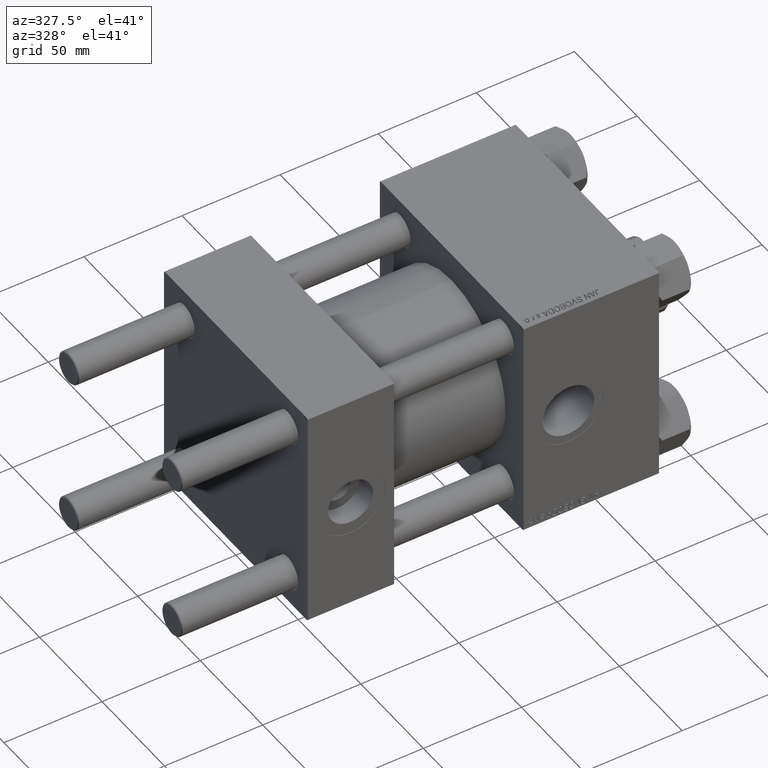
[diagram: clean part render]
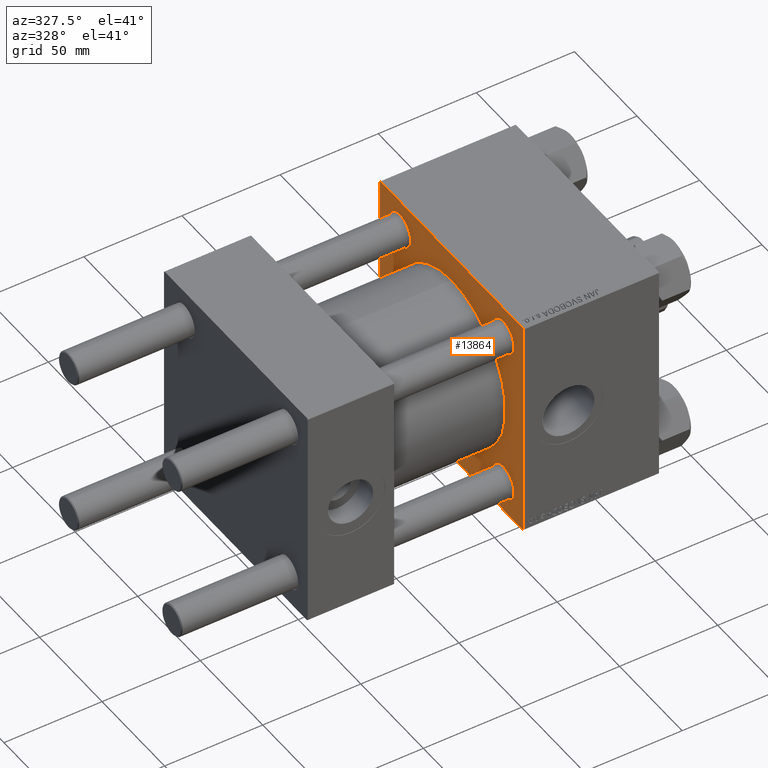
[diagram: same view with one face highlighted and labeled with its STEP entity id]
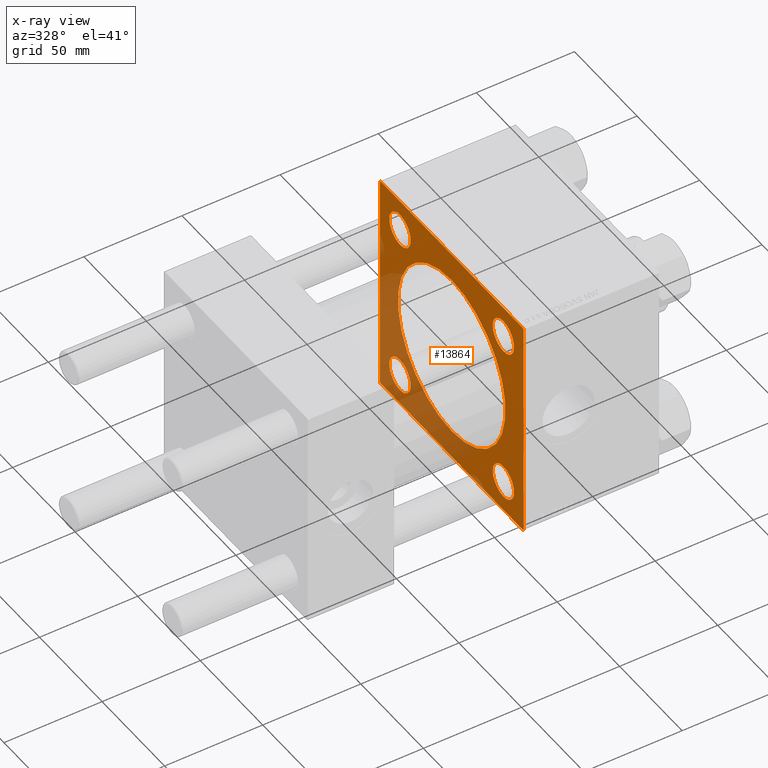
[diagram: x-ray of the same camera — body ghosted, the highlighted face saturated]
A machine part, auxiliary view. The second image highlights one B-rep face of the part: STEP entity #13864.
The next image is the same camera in x-ray: the body ghosted, the highlighted face saturated — about 31% of this face is hidden behind the body in this view.
In plain terms, the highlighted planar face has unit normal (-1, 0, 0).
Its self-contained STEP definition (entity closure, byte-faithful):
#338 = CARTESIAN_POINT ( 'NONE',  ( 110.0000000000000000, -41.34999999999998721, 49.85000000000002274 ) ) ;
#449 = CARTESIAN_POINT ( 'NONE',  ( 110.0000000000000000, 41.34999999999999432, 41.35000000000000142 ) ) ;
#676 = VERTEX_POINT ( 'NONE', #43783 ) ;
#844 = VERTEX_POINT ( 'NONE', #6535 ) ;
#869 = DIRECTION ( 'NONE',  ( 0.000000000000000000, 0.000000000000000000, -1.000000000000000000 ) ) ;
#1307 = ORIENTED_EDGE ( 'NONE', *, *, #30602, .T. ) ;
#1419 = VERTEX_POINT ( 'NONE', #44316 ) ;
#1496 = DIRECTION ( 'NONE',  ( 0.000000000000000000, 0.000000000000000000, 1.000000000000000000 ) ) ;
#1780 = CARTESIAN_POINT ( 'NONE',  ( 110.0000000000000000, 0.000000000000000000, 43.00000000000000000 ) ) ;
#1874 = VERTEX_POINT ( 'NONE', #35026 ) ;
#1920 = FACE_BOUND ( 'NONE', #12750, .T. ) ;
#2845 = LINE ( 'NONE', #33964, #40947 ) ;
#2906 = CARTESIAN_POINT ( 'NONE',  ( 110.0000000000000000, -57.49999999999999289, 56.99999999999996447 ) ) ;
#2942 = DIRECTION ( 'NONE',  ( 0.000000000000000000, 0.7071067811865672237, -0.7071067811865279218 ) ) ;
#3134 = VERTEX_POINT ( 'NONE', #36094 ) ;
#3811 = EDGE_CURVE ( 'NONE', #21902, #45372, #22940, .T. ) ;
#4297 = CARTESIAN_POINT ( 'NONE',  ( 110.0000000000000000, -41.34999999999998721, -32.85000000000000142 ) ) ;
#4731 = FACE_BOUND ( 'NONE', #47167, .T. ) ;
#5009 = VECTOR ( 'NONE', #17427, 1000.000000000000000 ) ;
#5416 = AXIS2_PLACEMENT_3D ( 'NONE', #41742, #22365, #37385 ) ;
#5457 = ORIENTED_EDGE ( 'NONE', *, *, #27644, .T. ) ;
#5629 = ORIENTED_EDGE ( 'NONE', *, *, #48922, .T. ) ;
#5926 = DIRECTION ( 'NONE',  ( 0.000000000000000000, 0.000000000000000000, -1.000000000000000000 ) ) ;
#6145 = CARTESIAN_POINT ( 'NONE',  ( 110.0000000000000000, 41.34999999999999432, -41.35000000000000142 ) ) ;
#6227 = CIRCLE ( 'NONE', #27389, 8.500000000000007105 ) ;
#6458 = VECTOR ( 'NONE', #10352, 1000.000000000000000 ) ;
#6535 = CARTESIAN_POINT ( 'NONE',  ( 110.0000000000000000, -57.49999999999999289, -56.99999999999997868 ) ) ;
#6973 = ORIENTED_EDGE ( 'NONE', *, *, #25658, .T. ) ;
#7035 = LINE ( 'NONE', #22351, #22482 ) ;
#7467 = CARTESIAN_POINT ( 'NONE',  ( 110.0000000000000000, 41.34999999999999432, 41.35000000000000142 ) ) ;
#7773 = ORIENTED_EDGE ( 'NONE', *, *, #3811, .T. ) ;
#8360 = DIRECTION ( 'NONE',  ( 0.000000000000000000, -1.000000000000000000, -1.206764157201257291E-16 ) ) ;
#9052 = EDGE_CURVE ( 'NONE', #1874, #31412, #18221, .T. ) ;
#9076 = CARTESIAN_POINT ( 'NONE',  ( 110.0000000000000000, 0.000000000000000000, 0.000000000000000000 ) ) ;
#9144 = AXIS2_PLACEMENT_3D ( 'NONE', #449, #23931, #39480 ) ;
#9306 = AXIS2_PLACEMENT_3D ( 'NONE', #9076, #25152, #28967 ) ;
#9337 = PLANE ( 'NONE',  #9306 ) ;
#9907 = AXIS2_PLACEMENT_3D ( 'NONE', #39311, #24252, #43134 ) ;
#9953 = EDGE_CURVE ( 'NONE', #38941, #38844, #16598, .T. ) ;
#10049 = AXIS2_PLACEMENT_3D ( 'NONE', #29747, #34072, #10634 ) ;
#10147 = LINE ( 'NONE', #25699, #28009 ) ;
#10314 = EDGE_CURVE ( 'NONE', #37091, #3134, #10147, .T. ) ;
#10352 = DIRECTION ( 'NONE',  ( -0.000000000000000000, 0.7071067811865328068, 0.7071067811865622277 ) ) ;
#10634 = DIRECTION ( 'NONE',  ( 0.000000000000000000, 0.000000000000000000, 1.000000000000000000 ) ) ;
#10820 = DIRECTION ( 'NONE',  ( 0.000000000000000000, 0.000000000000000000, 1.000000000000000000 ) ) ;
#12202 = CARTESIAN_POINT ( 'NONE',  ( 110.0000000000000000, 57.50000000000000000, -57.49999999999996447 ) ) ;
#12224 = CARTESIAN_POINT ( 'NONE',  ( 110.0000000000000000, -41.34999999999998721, -49.85000000000002274 ) ) ;
#12299 = VERTEX_POINT ( 'NONE', #2906 ) ;
#12605 = CIRCLE ( 'NONE', #45157, 8.500000000000007105 ) ;
#12661 = FACE_OUTER_BOUND ( 'NONE', #23662, .T. ) ;
#12750 = EDGE_LOOP ( 'NONE', ( #13820, #7773 ) ) ;
#13175 = FACE_BOUND ( 'NONE', #47598, .T. ) ;
#13820 = ORIENTED_EDGE ( 'NONE', *, *, #36222, .T. ) ;
#13864 = ADVANCED_FACE ( 'NONE', ( #24375, #40190, #13175, #1920, #4731, #12661 ), #9337, .T. ) ;
#14642 = DIRECTION ( 'NONE',  ( 1.000000000000000000, -0.000000000000000000, 0.000000000000000000 ) ) ;
#15396 = DIRECTION ( 'NONE',  ( 0.000000000000000000, 0.000000000000000000, -1.000000000000000000 ) ) ;
#15654 = EDGE_CURVE ( 'NONE', #37091, #28048, #7035, .T. ) ;
#15687 = CARTESIAN_POINT ( 'NONE',  ( 110.0000000000000000, -41.34999999999998721, 32.85000000000000142 ) ) ;
#16572 = CIRCLE ( 'NONE', #40193, 43.00000000000000000 ) ;
#16587 = VERTEX_POINT ( 'NONE', #25765 ) ;
#16598 = CIRCLE ( 'NONE', #38569, 8.500000000000007105 ) ;
#16635 = VERTEX_POINT ( 'NONE', #37734 ) ;
#17009 = EDGE_LOOP ( 'NONE', ( #48136, #19855 ) ) ;
#17072 = VERTEX_POINT ( 'NONE', #42018 ) ;
#17427 = DIRECTION ( 'NONE',  ( -0.000000000000000000, -0.7071067811865279218, -0.7071067811865672237 ) ) ;
#17559 = DIRECTION ( 'NONE',  ( 0.000000000000000000, -1.000000000000000000, -1.206764157201257291E-16 ) ) ;
#17974 = ORIENTED_EDGE ( 'NONE', *, *, #9052, .T. ) ;
#18060 = AXIS2_PLACEMENT_3D ( 'NONE', #28319, #24010, #42892 ) ;
#18221 = CIRCLE ( 'NONE', #10049, 8.500000000000007105 ) ;
#19855 = ORIENTED_EDGE ( 'NONE', *, *, #36850, .T. ) ;
#19877 = LINE ( 'NONE', #12202, #47892 ) ;
#21243 = CARTESIAN_POINT ( 'NONE',  ( 110.0000000000000000, 57.25000000000157030, -57.24999999999838707 ) ) ;
#21824 = CARTESIAN_POINT ( 'NONE',  ( 110.0000000000000000, -57.25000000000117240, 57.24999999999879208 ) ) ;
#21902 = VERTEX_POINT ( 'NONE', #12224 ) ;
#22092 = ORIENTED_EDGE ( 'NONE', *, *, #41326, .T. ) ;
#22351 = CARTESIAN_POINT ( 'NONE',  ( 110.0000000000000000, 57.24999999999840838, 57.25000000000159162 ) ) ;
#22365 = DIRECTION ( 'NONE',  ( 1.000000000000000000, -0.000000000000000000, 0.000000000000000000 ) ) ;
#22482 = VECTOR ( 'NONE', #2942, 1000.000000000000000 ) ;
#22940 = CIRCLE ( 'NONE', #9907, 8.500000000000007105 ) ;
#23662 = EDGE_LOOP ( 'NONE', ( #42739, #29440, #47849, #5629, #23774, #29681, #5457, #6973 ) ) ;
#23774 = ORIENTED_EDGE ( 'NONE', *, *, #10314, .F. ) ;
#23931 = DIRECTION ( 'NONE',  ( 1.000000000000000000, -0.000000000000000000, 0.000000000000000000 ) ) ;
#24010 = DIRECTION ( 'NONE',  ( 1.000000000000000000, 0.000000000000000000, 0.000000000000000000 ) ) ;
#24252 = DIRECTION ( 'NONE',  ( 1.000000000000000000, -0.000000000000000000, 0.000000000000000000 ) ) ;
#24261 = EDGE_CURVE ( 'NONE', #1419, #39201, #29423, .T. ) ;
#24375 = FACE_BOUND ( 'NONE', #37435, .T. ) ;
#25152 = DIRECTION ( 'NONE',  ( -1.000000000000000000, 0.000000000000000000, -0.000000000000000000 ) ) ;
#25658 = EDGE_CURVE ( 'NONE', #16635, #17072, #36778, .T. ) ;
#25699 = CARTESIAN_POINT ( 'NONE',  ( 110.0000000000000000, 57.50000000000000000, 57.50000000000000711 ) ) ;
#25765 = CARTESIAN_POINT ( 'NONE',  ( 110.0000000000000000, -56.99999999999995737, -57.49999999999997868 ) ) ;
#25899 = LINE ( 'NONE', #21824, #6458 ) ;
#26043 = CARTESIAN_POINT ( 'NONE',  ( 110.0000000000000000, -41.34999999999998721, -41.35000000000000853 ) ) ;
#26122 = DIRECTION ( 'NONE',  ( 1.000000000000000000, 0.000000000000000000, 0.000000000000000000 ) ) ;
#26439 = EDGE_CURVE ( 'NONE', #35069, #676, #27063, .T. ) ;
#26462 = CARTESIAN_POINT ( 'NONE',  ( 110.0000000000000000, 41.34999999999999432, 49.85000000000001563 ) ) ;
#27063 = CIRCLE ( 'NONE', #9144, 8.500000000000007105 ) ;
#27389 = AXIS2_PLACEMENT_3D ( 'NONE', #7467, #14642, #10820 ) ;
#27425 = ORIENTED_EDGE ( 'NONE', *, *, #9953, .T. ) ;
#27644 = EDGE_CURVE ( 'NONE', #28048, #16635, #2845, .T. ) ;
#27674 = LINE ( 'NONE', #31252, #32911 ) ;
#28009 = VECTOR ( 'NONE', #17559, 1000.000000000000000 ) ;
#28048 = VERTEX_POINT ( 'NONE', #49479 ) ;
#28319 = CARTESIAN_POINT ( 'NONE',  ( 110.0000000000000000, 0.000000000000000000, 0.000000000000000000 ) ) ;
#28967 = DIRECTION ( 'NONE',  ( -0.000000000000000000, 0.000000000000000000, 1.000000000000000000 ) ) ;
#29423 = CIRCLE ( 'NONE', #18060, 43.00000000000000000 ) ;
#29440 = ORIENTED_EDGE ( 'NONE', *, *, #31638, .T. ) ;
#29681 = ORIENTED_EDGE ( 'NONE', *, *, #15654, .T. ) ;
#29747 = CARTESIAN_POINT ( 'NONE',  ( 110.0000000000000000, 41.34999999999999432, -41.35000000000000142 ) ) ;
#30602 = EDGE_CURVE ( 'NONE', #39201, #1419, #16572, .T. ) ;
#31252 = CARTESIAN_POINT ( 'NONE',  ( 110.0000000000000000, -57.24999999999798916, -57.25000000000196820 ) ) ;
#31412 = VERTEX_POINT ( 'NONE', #43047 ) ;
#31638 = EDGE_CURVE ( 'NONE', #16587, #844, #27674, .T. ) ;
#32111 = DIRECTION ( 'NONE',  ( 1.000000000000000000, -0.000000000000000000, 0.000000000000000000 ) ) ;
#32724 = EDGE_CURVE ( 'NONE', #31412, #1874, #12605, .T. ) ;
#32911 = VECTOR ( 'NONE', #46571, 1000.000000000000000 ) ;
#33936 = DIRECTION ( 'NONE',  ( 0.000000000000000000, 0.000000000000000000, 1.000000000000000000 ) ) ;
#33964 = CARTESIAN_POINT ( 'NONE',  ( 110.0000000000000000, 57.50000000000000000, 57.50000000000000711 ) ) ;
#34072 = DIRECTION ( 'NONE',  ( 1.000000000000000000, -0.000000000000000000, 0.000000000000000000 ) ) ;
#34433 = DIRECTION ( 'NONE',  ( 1.000000000000000000, -0.000000000000000000, 0.000000000000000000 ) ) ;
#34759 = CARTESIAN_POINT ( 'NONE',  ( 110.0000000000000000, 0.000000000000000000, 0.000000000000000000 ) ) ;
#35026 = CARTESIAN_POINT ( 'NONE',  ( 110.0000000000000000, 41.34999999999999432, -32.84999999999999432 ) ) ;
#35069 = VERTEX_POINT ( 'NONE', #26462 ) ;
#35582 = CARTESIAN_POINT ( 'NONE',  ( 110.0000000000000000, -57.49999999999999289, 57.49999999999999289 ) ) ;
#36094 = CARTESIAN_POINT ( 'NONE',  ( 110.0000000000000000, -56.99999999999998579, 57.49999999999999289 ) ) ;
#36222 = EDGE_CURVE ( 'NONE', #45372, #21902, #48583, .T. ) ;
#36331 = LINE ( 'NONE', #35582, #49617 ) ;
#36778 = LINE ( 'NONE', #21243, #5009 ) ;
#36819 = ORIENTED_EDGE ( 'NONE', *, *, #24261, .T. ) ;
#36850 = EDGE_CURVE ( 'NONE', #676, #35069, #6227, .T. ) ;
#37091 = VERTEX_POINT ( 'NONE', #50502 ) ;
#37385 = DIRECTION ( 'NONE',  ( 0.000000000000000000, 0.000000000000000000, 1.000000000000000000 ) ) ;
#37435 = EDGE_LOOP ( 'NONE', ( #27425, #22092 ) ) ;
#37734 = CARTESIAN_POINT ( 'NONE',  ( 110.0000000000000000, 57.50000000000000000, -56.99999999999994316 ) ) ;
#38569 = AXIS2_PLACEMENT_3D ( 'NONE', #43605, #32111, #1496 ) ;
#38844 = VERTEX_POINT ( 'NONE', #15687 ) ;
#38941 = VERTEX_POINT ( 'NONE', #338 ) ;
#39201 = VERTEX_POINT ( 'NONE', #1780 ) ;
#39311 = CARTESIAN_POINT ( 'NONE',  ( 110.0000000000000000, -41.34999999999998721, -41.35000000000000853 ) ) ;
#39480 = DIRECTION ( 'NONE',  ( 0.000000000000000000, 0.000000000000000000, 1.000000000000000000 ) ) ;
#39815 = ORIENTED_EDGE ( 'NONE', *, *, #32724, .T. ) ;
#40190 = FACE_BOUND ( 'NONE', #17009, .T. ) ;
#40193 = AXIS2_PLACEMENT_3D ( 'NONE', #34759, #26122, #15396 ) ;
#40419 = AXIS2_PLACEMENT_3D ( 'NONE', #26043, #34433, #49255 ) ;
#40947 = VECTOR ( 'NONE', #5926, 1000.000000000000000 ) ;
#41102 = DIRECTION ( 'NONE',  ( 1.000000000000000000, -0.000000000000000000, 0.000000000000000000 ) ) ;
#41326 = EDGE_CURVE ( 'NONE', #38844, #38941, #42096, .T. ) ;
#41742 = CARTESIAN_POINT ( 'NONE',  ( 110.0000000000000000, -41.34999999999998721, 41.35000000000000853 ) ) ;
#42018 = CARTESIAN_POINT ( 'NONE',  ( 110.0000000000000000, 57.00000000000000000, -57.49999999999996447 ) ) ;
#42096 = CIRCLE ( 'NONE', #5416, 8.500000000000007105 ) ;
#42739 = ORIENTED_EDGE ( 'NONE', *, *, #44515, .T. ) ;
#42892 = DIRECTION ( 'NONE',  ( 0.000000000000000000, 0.000000000000000000, -1.000000000000000000 ) ) ;
#43047 = CARTESIAN_POINT ( 'NONE',  ( 110.0000000000000000, 41.34999999999999432, -49.85000000000001563 ) ) ;
#43134 = DIRECTION ( 'NONE',  ( 0.000000000000000000, 0.000000000000000000, 1.000000000000000000 ) ) ;
#43605 = CARTESIAN_POINT ( 'NONE',  ( 110.0000000000000000, -41.34999999999998721, 41.35000000000000853 ) ) ;
#43783 = CARTESIAN_POINT ( 'NONE',  ( 110.0000000000000000, 41.34999999999999432, 32.84999999999999432 ) ) ;
#44316 = CARTESIAN_POINT ( 'NONE',  ( 110.0000000000000000, 5.265981236333618470E-15, -43.00000000000000000 ) ) ;
#44515 = EDGE_CURVE ( 'NONE', #17072, #16587, #19877, .T. ) ;
#45157 = AXIS2_PLACEMENT_3D ( 'NONE', #6145, #41102, #33936 ) ;
#45372 = VERTEX_POINT ( 'NONE', #4297 ) ;
#46571 = DIRECTION ( 'NONE',  ( 0.000000000000000000, -0.7071067811865721087, 0.7071067811865230368 ) ) ;
#47167 = EDGE_LOOP ( 'NONE', ( #1307, #36819 ) ) ;
#47426 = EDGE_CURVE ( 'NONE', #12299, #844, #36331, .T. ) ;
#47598 = EDGE_LOOP ( 'NONE', ( #17974, #39815 ) ) ;
#47849 = ORIENTED_EDGE ( 'NONE', *, *, #47426, .F. ) ;
#47892 = VECTOR ( 'NONE', #8360, 1000.000000000000000 ) ;
#48136 = ORIENTED_EDGE ( 'NONE', *, *, #26439, .T. ) ;
#48583 = CIRCLE ( 'NONE', #40419, 8.500000000000007105 ) ;
#48922 = EDGE_CURVE ( 'NONE', #12299, #3134, #25899, .T. ) ;
#49255 = DIRECTION ( 'NONE',  ( 0.000000000000000000, 0.000000000000000000, 1.000000000000000000 ) ) ;
#49479 = CARTESIAN_POINT ( 'NONE',  ( 110.0000000000000000, 57.50000000000000000, 57.00000000000000711 ) ) ;
#49617 = VECTOR ( 'NONE', #869, 1000.000000000000000 ) ;
#50502 = CARTESIAN_POINT ( 'NONE',  ( 110.0000000000000000, 56.99999999999997158, 57.50000000000000711 ) ) ;